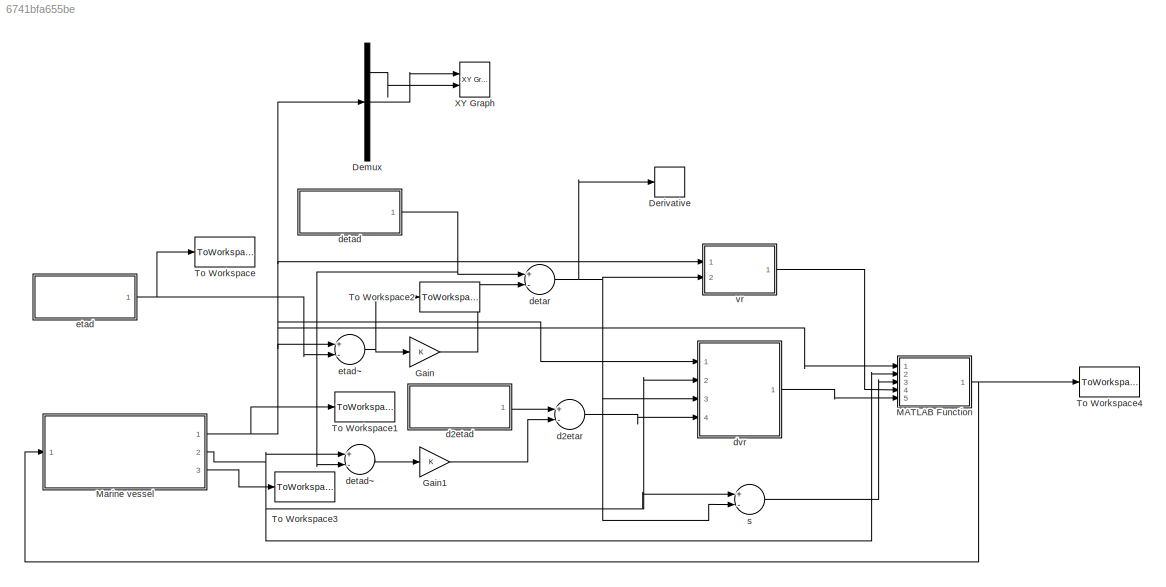
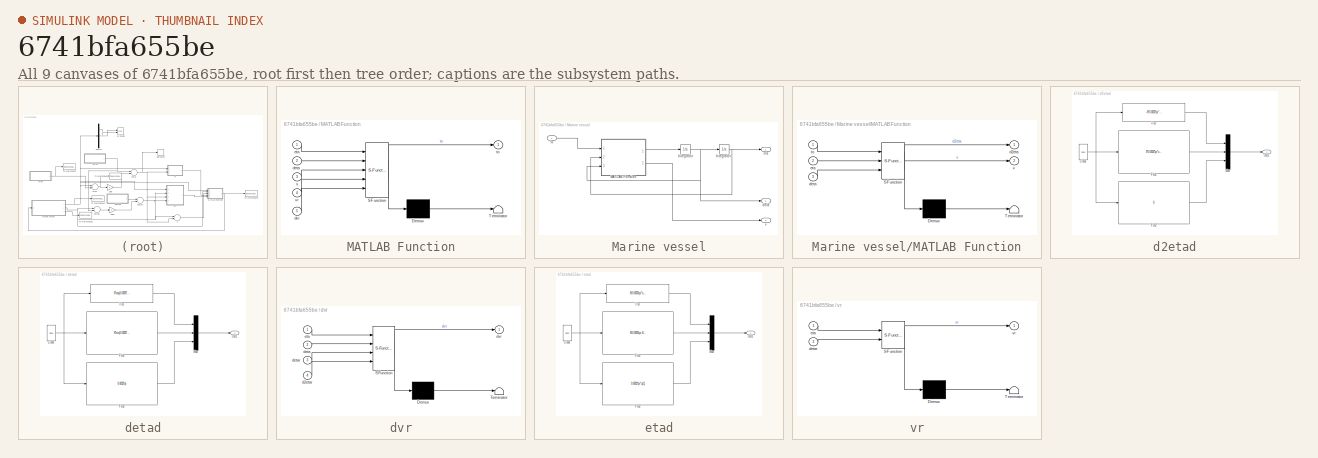
[diagram: thumbnail index - all 9 canvases of the model, root first then tree order]
MODEL slx_6741bfa655be
KIND model
CONFIG AbsTol = auto
CONFIG EnableMultiTasking = off
CONFIG FixedStep = 0.06
CONFIG MaxStep = auto
CONFIG MinStep = auto
CONFIG RelTol = 1e-3
CONFIG SampleTimeConstraint = Unconstrained
CONFIG Solver = FixedStepAuto
CONFIG SolverName = FixedStepAuto
CONFIG StartTime = 0.0
CONFIG StopTime = 600
BLOCK [Demux] Demux
  DisplayOption = bar
  Outputs = 3
  Ports = [1, 3]
BLOCK [Derivative] Derivative
BLOCK [Gain] Gain
  OutDataTypeStr = Inherit: Inherit via internal rule
  ParamDataTypeStr = Inherit: Inherit via internal rule
  SaturateOnIntegerOverflow = off
BLOCK [Gain] Gain1
  OutDataTypeStr = Inherit: Inherit via internal rule
  ParamDataTypeStr = Inherit: Inherit via internal rule
  SaturateOnIntegerOverflow = off
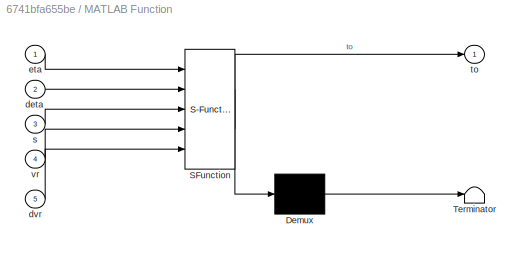
BLOCK [SubSystem] MATLAB Function
  ErrorFcn = Stateflow.Translate.translate
  PermitHierarchicalResolution = ExplicitOnly
  Ports = [5, 1]
  RequestExecContextInheritance = off
  SFBlockType = MATLAB Function
  TreatAsAtomicUnit = on
BLOCK [Demux] MATLAB Function/ Demux 
  Outputs = 1
  Ports = [1, 1]
BLOCK [S-Function] MATLAB Function/ SFunction 
  EnableBusSupport = on
  FunctionName = sf_sfun
  PortCounts = [5 2]
  Ports = [5, 2]
  SFcnIsStateOwnerBlock = off
  SFunctionDeploymentMode = off
  Tag = Stateflow S-Function SMCmarine 4
BLOCK [Terminator] MATLAB Function/ Terminator 
BLOCK [Inport] MATLAB Function/deta
  IconDisplay = Port number
  Port = 2
BLOCK [Inport] MATLAB Function/dvr
  IconDisplay = Port number
  Port = 5
BLOCK [Inport] MATLAB Function/eta
  IconDisplay = Port number
BLOCK [Inport] MATLAB Function/s
  IconDisplay = Port number
  Port = 3
BLOCK [Outport] MATLAB Function/to
  IconDisplay = Port number
BLOCK [Inport] MATLAB Function/vr
  IconDisplay = Port number
  Port = 4
BLOCK [SubSystem] Marine vessel
  Ports = [1, 3]
  RequestExecContextInheritance = off
BLOCK [Integrator] Marine vessel/Integrator
  InitialCondition = [0;0;0]
  Ports = [1, 1]
BLOCK [Integrator] Marine vessel/Integrator1
  InitialCondition = [-100;800;pi/2]
  Ports = [1, 1]
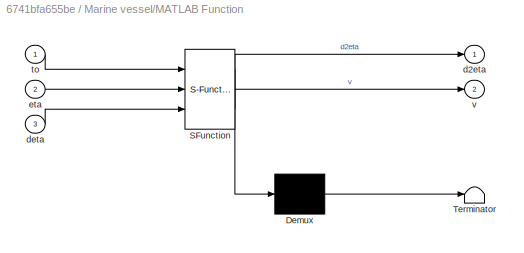
BLOCK [SubSystem] Marine vessel/MATLAB Function
  ErrorFcn = Stateflow.Translate.translate
  PermitHierarchicalResolution = ExplicitOnly
  Ports = [3, 2]
  RequestExecContextInheritance = off
  SFBlockType = MATLAB Function
  TreatAsAtomicUnit = on
BLOCK [Demux] Marine vessel/MATLAB Function/ Demux 
  Outputs = 1
  Ports = [1, 1]
BLOCK [S-Function] Marine vessel/MATLAB Function/ SFunction 
  EnableBusSupport = on
  FunctionName = sf_sfun
  PortCounts = [3 3]
  Ports = [3, 3]
  SFcnIsStateOwnerBlock = off
  SFunctionDeploymentMode = off
  Tag = Stateflow S-Function SMCmarine 2
BLOCK [Terminator] Marine vessel/MATLAB Function/ Terminator 
BLOCK [Outport] Marine vessel/MATLAB Function/d2eta
  IconDisplay = Port number
BLOCK [Inport] Marine vessel/MATLAB Function/deta
  IconDisplay = Port number
  Port = 3
BLOCK [Inport] Marine vessel/MATLAB Function/eta
  IconDisplay = Port number
  Port = 2
BLOCK [Inport] Marine vessel/MATLAB Function/to
  IconDisplay = Port number
BLOCK [Outport] Marine vessel/MATLAB Function/v
  IconDisplay = Port number
  Port = 2
BLOCK [Outport] Marine vessel/deta
  IconDisplay = Port number
  Port = 2
BLOCK [Outport] Marine vessel/eta
  IconDisplay = Port number
BLOCK [Inport] Marine vessel/to
  IconDisplay = Port number
BLOCK [Outport] Marine vessel/v
  IconDisplay = Port number
  Port = 3
BLOCK [ToWorkspace] To Workspace
  FixptAsFi = on
  MaxDataPoints = inf
  Ports = [1]
  SampleTime = -1
  Save2DSignal = 3-D array (concatenate along third dimension)
  VariableName = etad
BLOCK [ToWorkspace] To Workspace1
  FixptAsFi = on
  MaxDataPoints = inf
  Ports = [1]
  SampleTime = -1
  Save2DSignal = 3-D array (concatenate along third dimension)
  VariableName = eta
BLOCK [ToWorkspace] To Workspace2
  FixptAsFi = on
  MaxDataPoints = inf
  Ports = [1]
  SampleTime = -1
  Save2DSignal = 3-D array (concatenate along third dimension)
  VariableName = etaerr
BLOCK [ToWorkspace] To Workspace3
  FixptAsFi = on
  MaxDataPoints = inf
  Ports = [1]
  SampleTime = -1
  Save2DSignal = 3-D array (concatenate along third dimension)
  VariableName = v
BLOCK [ToWorkspace] To Workspace4
  FixptAsFi = on
  MaxDataPoints = inf
  Ports = [1]
  SampleTime = -1
  Save2DSignal = 3-D array (concatenate along third dimension)
  VariableName = to
BLOCK [Reference] XY Graph  REF=simulink/Sinks/XY Graph
  Ports = [2]
  SourceBlock = simulink/Sinks/XY Graph
  SourceProductBaseCode = SL
  SourceProductName = Simulink
  SourceType = XY scope.
BLOCK [SubSystem] d2etad
  Ports = [0, 1]
  RequestExecContextInheritance = off
BLOCK [Clock] d2etad/Clock
BLOCK [Fcn] d2etad/Fcn
  Expr = -8*0.0033*pi*sin(0.0033*pi*u(1))
BLOCK [Fcn] d2etad/Fcn1
  Expr = 8*0.0033*pi*cos(0.0033*pi*u(1))
BLOCK [Fcn] d2etad/Fcn2
  Expr = 0
BLOCK [Mux] d2etad/Mux
  DisplayOption = bar
  Inputs = 3
  Ports = [3, 1]
BLOCK [Outport] d2etad/Out1
  IconDisplay = Port number
BLOCK [Sum] d2etar
  InputSameDT = off
  Inputs = +-
  OutDataTypeStr = Inherit: Inherit via internal rule
  Ports = [2, 1]
  SaturateOnIntegerOverflow = off
BLOCK [SubSystem] detad
  Ports = [0, 1]
  RequestExecContextInheritance = off
BLOCK [Clock] detad/Clock
BLOCK [Fcn] detad/Fcn
  Expr = 8*cos(0.0033*pi*u(1))
BLOCK [Fcn] detad/Fcn1
  Expr = 8*sin(0.0033*pi*u(1))
BLOCK [Fcn] detad/Fcn2
  Expr = 0.0033*pi
BLOCK [Mux] detad/Mux
  DisplayOption = bar
  Inputs = 3
  Ports = [3, 1]
BLOCK [Outport] detad/Out1
  IconDisplay = Port number
BLOCK [Sum] detad~
  InputSameDT = off
  Inputs = +-
  OutDataTypeStr = Inherit: Inherit via internal rule
  Ports = [2, 1]
  SaturateOnIntegerOverflow = off
BLOCK [Sum] detar
  InputSameDT = off
  Inputs = +-
  OutDataTypeStr = Inherit: Inherit via internal rule
  Ports = [2, 1]
  SaturateOnIntegerOverflow = off
BLOCK [SubSystem] dvr
  ErrorFcn = Stateflow.Translate.translate
  PermitHierarchicalResolution = ExplicitOnly
  Ports = [4, 1]
  RequestExecContextInheritance = off
  SFBlockType = MATLAB Function
  TreatAsAtomicUnit = on
BLOCK [Demux] dvr/ Demux 
  Outputs = 1
  Ports = [1, 1]
BLOCK [S-Function] dvr/ SFunction 
  EnableBusSupport = on
  FunctionName = sf_sfun
  PortCounts = [4 2]
  Ports = [4, 2]
  SFcnIsStateOwnerBlock = off
  SFunctionDeploymentMode = off
  Tag = Stateflow S-Function SMCmarine 3
BLOCK [Terminator] dvr/ Terminator 
BLOCK [Inport] dvr/d2etar
  IconDisplay = Port number
  Port = 4
BLOCK [Inport] dvr/deta
  IconDisplay = Port number
  Port = 2
BLOCK [Inport] dvr/detar
  IconDisplay = Port number
  Port = 3
BLOCK [Outport] dvr/dvr
  IconDisplay = Port number
BLOCK [Inport] dvr/eta
  IconDisplay = Port number
BLOCK [SubSystem] etad
  Ports = [0, 1]
  RequestExecContextInheritance = off
BLOCK [Clock] etad/Clock
BLOCK [Fcn] etad/Fcn
  Expr = 8/0.0033/pi*sin(0.0033*pi*u(1))
BLOCK [Fcn] etad/Fcn1
  Expr = 8/0.0033/pi-8/0.0033/pi*cos(0.0033*pi*u(1))
BLOCK [Fcn] etad/Fcn2
  Expr = 0.0033*pi*u(1)
BLOCK [Mux] etad/Mux
  DisplayOption = bar
  Inputs = 3
  Ports = [3, 1]
BLOCK [Outport] etad/Out1
  IconDisplay = Port number
BLOCK [Sum] etad~
  InputSameDT = off
  Inputs = +-
  OutDataTypeStr = Inherit: Inherit via internal rule
  Ports = [2, 1]
  SaturateOnIntegerOverflow = off
BLOCK [Sum] s
  InputSameDT = off
  Inputs = +-
  OutDataTypeStr = Inherit: Inherit via internal rule
  Ports = [2, 1]
  SaturateOnIntegerOverflow = off
BLOCK [SubSystem] vr
  ErrorFcn = Stateflow.Translate.translate
  PermitHierarchicalResolution = ExplicitOnly
  Ports = [2, 1]
  RequestExecContextInheritance = off
  SFBlockType = MATLAB Function
  TreatAsAtomicUnit = on
BLOCK [Demux] vr/ Demux 
  Outputs = 1
  Ports = [1, 1]
BLOCK [S-Function] vr/ SFunction 
  EnableBusSupport = on
  FunctionName = sf_sfun
  PortCounts = [2 2]
  Ports = [2, 2]
  SFcnIsStateOwnerBlock = off
  SFunctionDeploymentMode = off
  Tag = Stateflow S-Function SMCmarine 1
BLOCK [Terminator] vr/ Terminator 
BLOCK [Inport] vr/detar
  IconDisplay = Port number
  Port = 2
BLOCK [Inport] vr/eta
  IconDisplay = Port number
BLOCK [Outport] vr/vr
  IconDisplay = Port number
LINE Demux:1 -> XY Graph:2
LINE Demux:2 -> XY Graph:1
LINE Gain1:1 -> d2etar:2
LINE Gain:1 -> detar:2
NET MATLAB Function:1 -> Marine vessel:1, To Workspace4:1
NET Marine vessel/Integrator1:1 -> Marine vessel/MATLAB Function:2, Marine vessel/eta:1
NET Marine vessel/Integrator:1 -> Marine vessel/Integrator1:1, Marine vessel/MATLAB Function:3, Marine vessel/deta:1
LINE Marine vessel/MATLAB Function:1 -> Marine vessel/Integrator:1
LINE Marine vessel/MATLAB Function:2 -> Marine vessel/v:1
LINE Marine vessel/to:1 -> Marine vessel/MATLAB Function:1
NET Marine vessel:1 -> Demux:1, MATLAB Function:1, To Workspace1:1, dvr:1, etad~:1, vr:1
NET Marine vessel:2 -> MATLAB Function:2, detad~:1, dvr:2, s:1
LINE Marine vessel:3 -> To Workspace3:1
NET d2etad/Clock:1 -> d2etad/Fcn1:1, d2etad/Fcn2:1, d2etad/Fcn:1
LINE d2etad/Fcn1:1 -> d2etad/Mux:2
LINE d2etad/Fcn2:1 -> d2etad/Mux:3
LINE d2etad/Fcn:1 -> d2etad/Mux:1
LINE d2etad/Mux:1 -> d2etad/Out1:1
LINE d2etad:1 -> d2etar:1
LINE d2etar:1 -> dvr:4
NET detad/Clock:1 -> detad/Fcn1:1, detad/Fcn2:1, detad/Fcn:1
LINE detad/Fcn1:1 -> detad/Mux:2
LINE detad/Fcn2:1 -> detad/Mux:3
LINE detad/Fcn:1 -> detad/Mux:1
LINE detad/Mux:1 -> detad/Out1:1
NET detad:1 -> detad~:2, detar:1
LINE detad~:1 -> Gain1:1
NET detar:1 -> Derivative:1, dvr:3, s:2, vr:2
LINE dvr:1 -> MATLAB Function:5
NET etad/Clock:1 -> etad/Fcn1:1, etad/Fcn2:1, etad/Fcn:1
LINE etad/Fcn1:1 -> etad/Mux:2
LINE etad/Fcn2:1 -> etad/Mux:3
LINE etad/Fcn:1 -> etad/Mux:1
LINE etad/Mux:1 -> etad/Out1:1
NET etad:1 -> To Workspace:1, etad~:2
NET etad~:1 -> Gain:1, To Workspace2:1
LINE s:1 -> MATLAB Function:3
LINE vr:1 -> MATLAB Function:4
note: NET lines group one-source signal fan-out (src -> all destinations, sorted); 1:1 wires keep LINE
CHART vr states=1 transitions=1
  STATE_LABEL 'eML_blk_kernel()'
  STATE_LABEL "SCRIPT:\nfunction vr = fcn(eta,detar)\nJ=[cos(eta(3)) -sin(eta(3)) 0;\n    sin(eta(3)) cos(eta(3)) 0;\n    0 0 1];\nvr=J'*detar;\nend\n"
CHART Marine vessel/MATLAB Function states=1 transitions=1
  STATE_LABEL 'eML_blk_kernel()'
  STATE_LABEL "SCRIPT:\nfunction [d2eta,v] = fcn(to,eta,deta)\nJ=[cos(eta(3)) -sin(eta(3)) 0;\n    sin(eta(3)) cos(eta(3)) 0;\n    0 0 1];\nv=J'*deta;\nM=1e6*[4.5096 0 0;0 7.5608 -22.68;0 -22.68 2968.3];\nc13=-7.5608*v(2)+22.68*v(3);\nc23=4.5096*v(1);\nc31=-c13;\nc32=-c23;\nC=[0 0 c13;0 0 c23;c31 c32 0];\nD=1e6*[0.05138 0 0;0 0.1698 -1.5081;0 -1.5081 253];\nS=[0 -deta(3) 0;\n    deta(3) 0 0;\n    0 0 0];\nMeta=M*J';\nCeta=(C-M*S...<+57ch>"
CHART dvr states=1 transitions=1
  STATE_LABEL 'eML_blk_kernel()'
  STATE_LABEL "SCRIPT:\nfunction dvr = fcn(eta,deta,detar,d2etar)\nJ=[cos(eta(3)) -sin(eta(3)) 0;\n    sin(eta(3)) cos(eta(3)) 0;\n    0 0 1];\nS=[0 -deta(3) 0;\n    deta(3) 0 0;\n    0 0 0];\ndvr=-S*J'*detar+J'*d2etar;\nend"
CHART MATLAB Function states=1 transitions=1
  STATE_LABEL 'eML_blk_kernel()'
  STATE_LABEL "SCRIPT:\nfunction to = fcn(eta,deta,s,vr,dvr)\nJ=[cos(eta(3)) -sin(eta(3)) 0;\n    sin(eta(3)) cos(eta(3)) 0;\n    0 0 1];\nv=J'*deta;\nM=1e6*[4.5096 0 0;0 7.5608 -22.68;0 -22.68 2968.3];\nc13=-7.5608*v(2)+22.68*v(3);\nc23=4.5096*v(1);\nc31=-c13;\nc32=-c23;\nC=[0 0 c13;0 0 c23;c31 c32 0];\nD=1e6*[0.05138 0 0;0 0.1698 -1.5081;0 -1.5081 253];\nS=[0 -deta(3) 0;\n    deta(3) 0 0;\n    0 0 0];\nMeta=M*J';\nCeta=(C-M*S)...<+94ch>"
